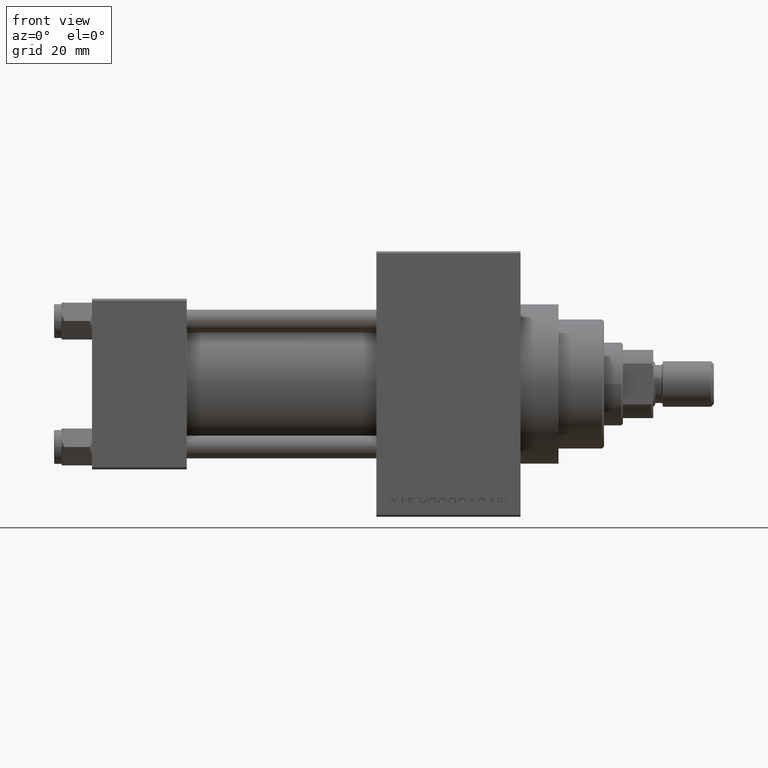
[diagram: clean part render]
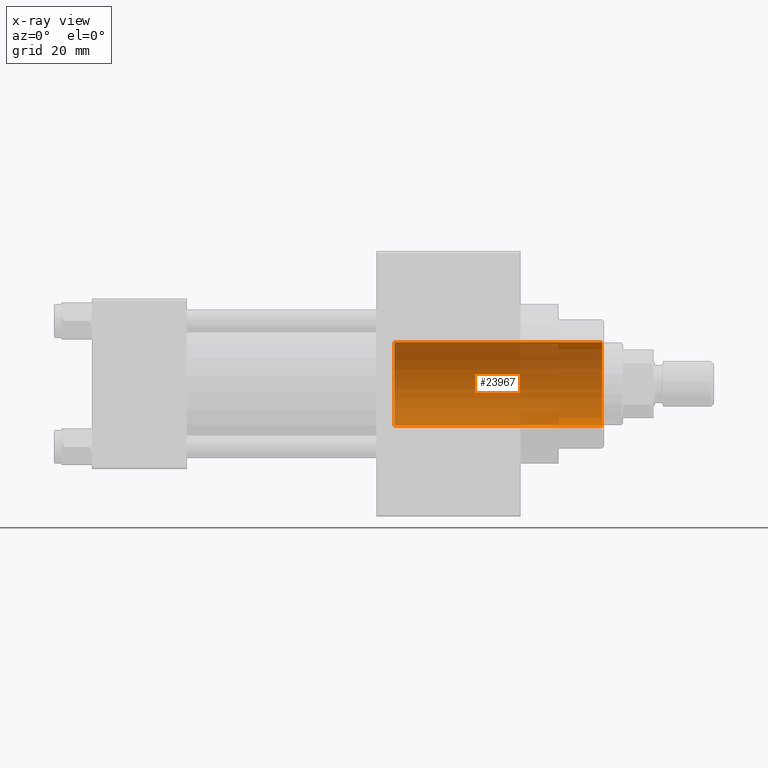
[diagram: x-ray — body ghosted, one internal face saturated and labeled with its STEP entity id]
A machine part, front view, then the same camera in x-ray: the body is ghosted and one INTERNAL B-rep face — a face not visible from any outside direction — is saturated and labeled: STEP entity #23967.
In plain terms, the highlighted cylindrical surface (partial cylindrical patch) has radius 11 mm, axis along (1, -0, -0).
Its self-contained STEP definition (entity closure, byte-faithful):
#3133 = EDGE_CURVE ( 'NONE', #24776, #8668, #28920, .T. ) ;
#6026 = EDGE_CURVE ( 'NONE', #8668, #28389, #38061, .T. ) ;
#8615 = DIRECTION ( 'NONE',  ( 1.000000000000000000, 0.000000000000000000, 0.000000000000000000 ) ) ;
#8668 = VERTEX_POINT ( 'NONE', #40670 ) ;
#8830 = CARTESIAN_POINT ( 'NONE',  ( 0.000000000000000000, 0.000000000000000000, 54.76000000000000512 ) ) ;
#9092 = DIRECTION ( 'NONE',  ( -0.000000000000000000, -0.000000000000000000, 1.000000000000000000 ) ) ;
#9107 = VECTOR ( 'NONE', #34462, 1000.000000000000000 ) ;
#9337 = CYLINDRICAL_SURFACE ( 'NONE', #30419, 11.00000000000000000 ) ;
#12338 = LINE ( 'NONE', #23406, #9107 ) ;
#12451 = DIRECTION ( 'NONE',  ( 1.000000000000000000, 0.000000000000000000, 0.000000000000000000 ) ) ;
#12564 = CARTESIAN_POINT ( 'NONE',  ( -11.00000000000000000, 1.347111479062088405E-15, 54.76000000000000512 ) ) ;
#17339 = AXIS2_PLACEMENT_3D ( 'NONE', #8830, #35474, #12451 ) ;
#19045 = AXIS2_PLACEMENT_3D ( 'NONE', #32766, #47444, #43842 ) ;
#21344 = CIRCLE ( 'NONE', #19045, 11.00000000000000000 ) ;
#22031 = CARTESIAN_POINT ( 'NONE',  ( -11.00000000000000000, 1.347111479062088405E-15, 0.000000000000000000 ) ) ;
#23406 = CARTESIAN_POINT ( 'NONE',  ( -11.00000000000000000, 1.347111479062088405E-15, -31.11269837220809364 ) ) ;
#23967 = ADVANCED_FACE ( 'NONE', ( #41347 ), #9337, .F. ) ;
#24776 = VERTEX_POINT ( 'NONE', #42776 ) ;
#26724 = ORIENTED_EDGE ( 'NONE', *, *, #6026, .F. ) ;
#28389 = VERTEX_POINT ( 'NONE', #12564 ) ;
#28920 = LINE ( 'NONE', #43846, #41093 ) ;
#30283 = CARTESIAN_POINT ( 'NONE',  ( 0.000000000000000000, 0.000000000000000000, -31.11269837220809364 ) ) ;
#30419 = AXIS2_PLACEMENT_3D ( 'NONE', #30283, #9092, #8615 ) ;
#30548 = ORIENTED_EDGE ( 'NONE', *, *, #35310, .T. ) ;
#32766 = CARTESIAN_POINT ( 'NONE',  ( 0.000000000000000000, 0.000000000000000000, 0.000000000000000000 ) ) ;
#32798 = EDGE_CURVE ( 'NONE', #24776, #39222, #21344, .T. ) ;
#33385 = ORIENTED_EDGE ( 'NONE', *, *, #3133, .F. ) ;
#34462 = DIRECTION ( 'NONE',  ( -0.000000000000000000, -0.000000000000000000, 1.000000000000000000 ) ) ;
#35310 = EDGE_CURVE ( 'NONE', #39222, #28389, #12338, .T. ) ;
#35474 = DIRECTION ( 'NONE',  ( -0.000000000000000000, -0.000000000000000000, -1.000000000000000000 ) ) ;
#38061 = CIRCLE ( 'NONE', #17339, 11.00000000000000000 ) ;
#39138 = ORIENTED_EDGE ( 'NONE', *, *, #32798, .T. ) ;
#39222 = VERTEX_POINT ( 'NONE', #22031 ) ;
#40670 = CARTESIAN_POINT ( 'NONE',  ( 11.00000000000000000, 0.000000000000000000, 54.76000000000000512 ) ) ;
#41093 = VECTOR ( 'NONE', #43595, 1000.000000000000000 ) ;
#41347 = FACE_OUTER_BOUND ( 'NONE', #44015, .T. ) ;
#42776 = CARTESIAN_POINT ( 'NONE',  ( 11.00000000000000000, 0.000000000000000000, 0.000000000000000000 ) ) ;
#43595 = DIRECTION ( 'NONE',  ( -0.000000000000000000, -0.000000000000000000, 1.000000000000000000 ) ) ;
#43842 = DIRECTION ( 'NONE',  ( 1.000000000000000000, 0.000000000000000000, 0.000000000000000000 ) ) ;
#43846 = CARTESIAN_POINT ( 'NONE',  ( 11.00000000000000000, 0.000000000000000000, -31.11269837220809364 ) ) ;
#44015 = EDGE_LOOP ( 'NONE', ( #39138, #30548, #26724, #33385 ) ) ;
#47444 = DIRECTION ( 'NONE',  ( -0.000000000000000000, -0.000000000000000000, -1.000000000000000000 ) ) ;